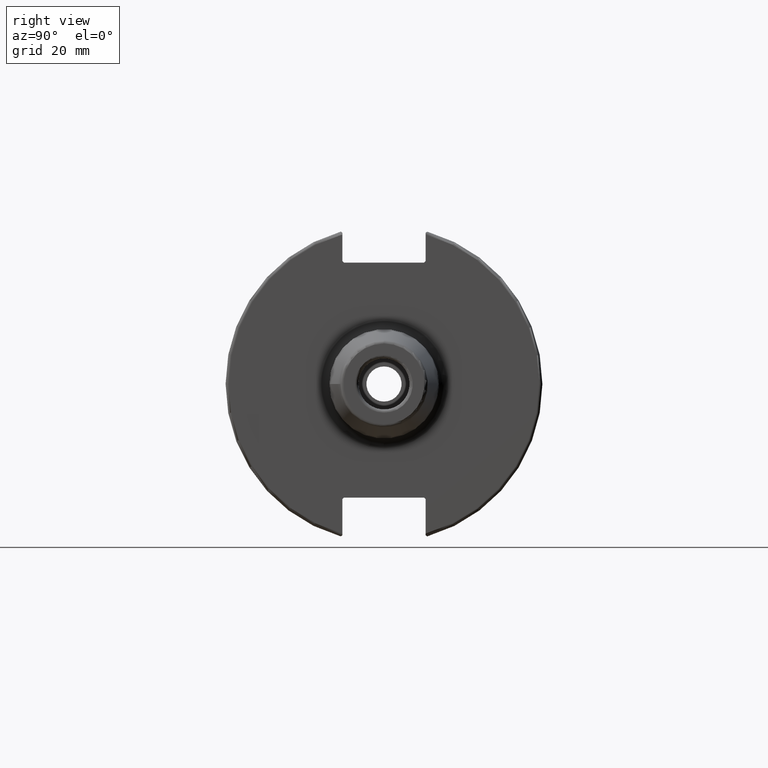
[diagram: clean part render]
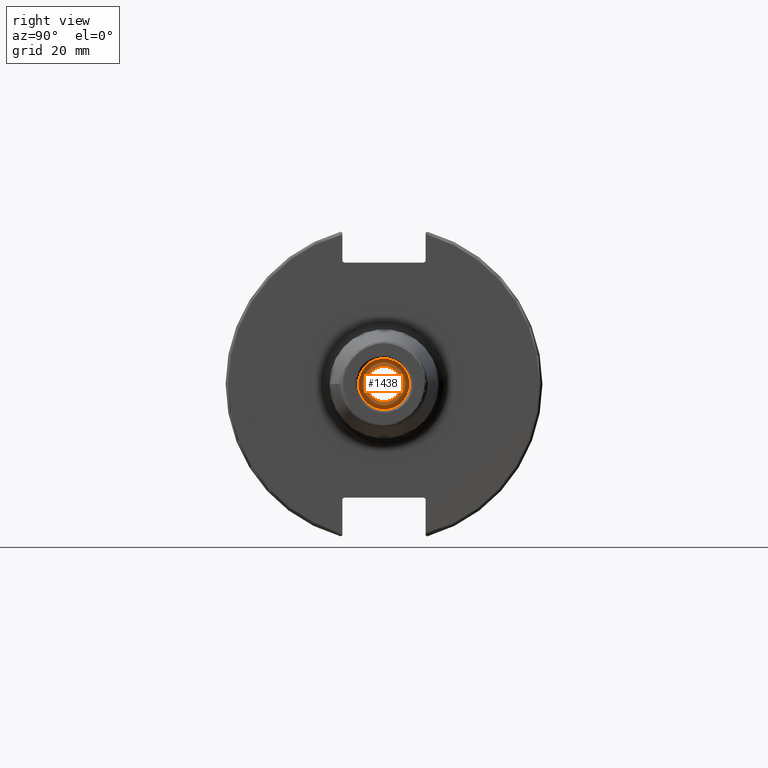
[diagram: same view with one face highlighted and labeled with its STEP entity id]
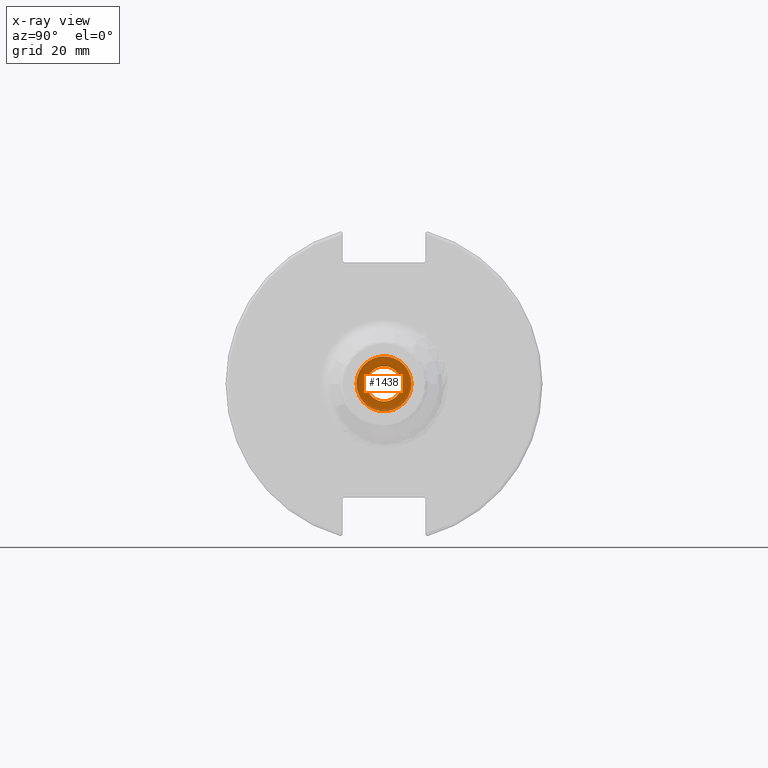
[diagram: x-ray of the same camera — body ghosted, the highlighted face saturated]
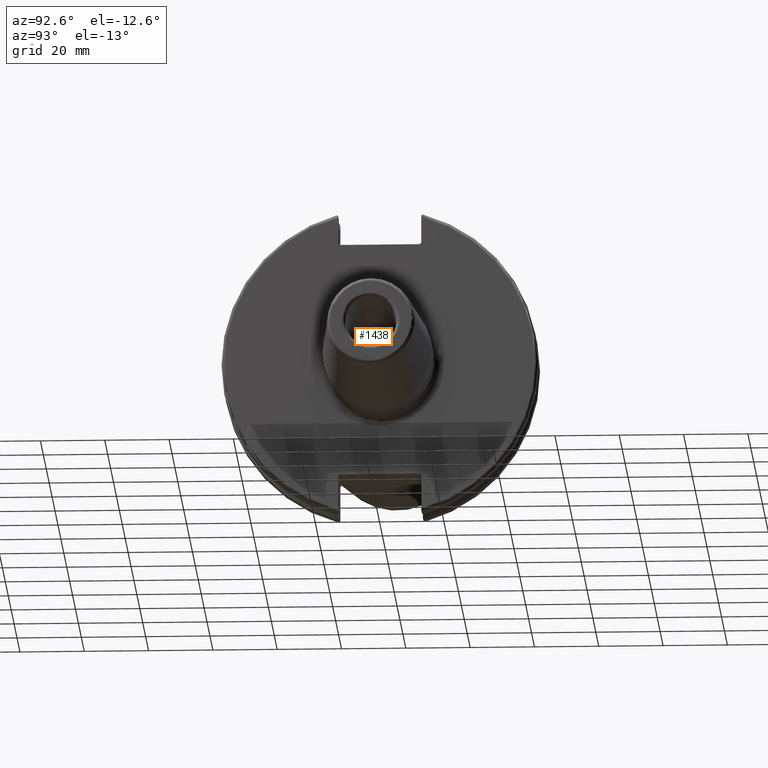
[diagram: same view with one face highlighted and labeled with its STEP entity id]
A machine part, right view. The second image highlights one B-rep face of the part: STEP entity #1438.
The next image is the same camera in x-ray: the body ghosted, the highlighted face saturated — about 23% of this face is hidden behind the body in this view.
A second angle (auxiliary view) of the same face is appended — the face is thin or edge-on in the first view.
In plain terms, the highlighted planar face has unit normal (1, 0, 0).
Its self-contained STEP definition (entity closure, byte-faithful):
#294=FACE_BOUND('',#449,.T.);
#312=PLANE('',#1568);
#359=FACE_OUTER_BOUND('',#448,.T.);
#448=EDGE_LOOP('',(#1045));
#449=EDGE_LOOP('',(#1046));
#550=CIRCLE('',#1557,5.4585);
#556=CIRCLE('',#1567,8.53749999999999);
#631=VERTEX_POINT('',#2166);
#641=VERTEX_POINT('',#2261);
#785=EDGE_CURVE('',#631,#631,#550,.T.);
#799=EDGE_CURVE('',#641,#641,#556,.T.);
#1045=ORIENTED_EDGE('',*,*,#799,.T.);
#1046=ORIENTED_EDGE('',*,*,#785,.T.);
#1438=ADVANCED_FACE('',(#359,#294),#312,.T.);
#1557=AXIS2_PLACEMENT_3D('',#2167,#1757,#1758);
#1567=AXIS2_PLACEMENT_3D('',#2263,#1781,#1782);
#1568=AXIS2_PLACEMENT_3D('',#2264,#1783,#1784);
#1757=DIRECTION('center_axis',(-1.,0.,0.));
#1758=DIRECTION('ref_axis',(0.,0.,-1.));
#1781=DIRECTION('center_axis',(1.,0.,0.));
#1782=DIRECTION('ref_axis',(0.,0.,-1.));
#1783=DIRECTION('center_axis',(1.,0.,0.));
#1784=DIRECTION('ref_axis',(0.,0.,-1.));
#2166=CARTESIAN_POINT('',(28.,6.68473455314583E-16,5.4585));
#2167=CARTESIAN_POINT('Origin',(28.,0.,0.));
#2261=CARTESIAN_POINT('',(28.,-8.53749999999999,-1.04554220477205E-15));
#2263=CARTESIAN_POINT('Origin',(28.,0.,0.));
#2264=CARTESIAN_POINT('Origin',(28.,-1.48930417140496E-14,0.));